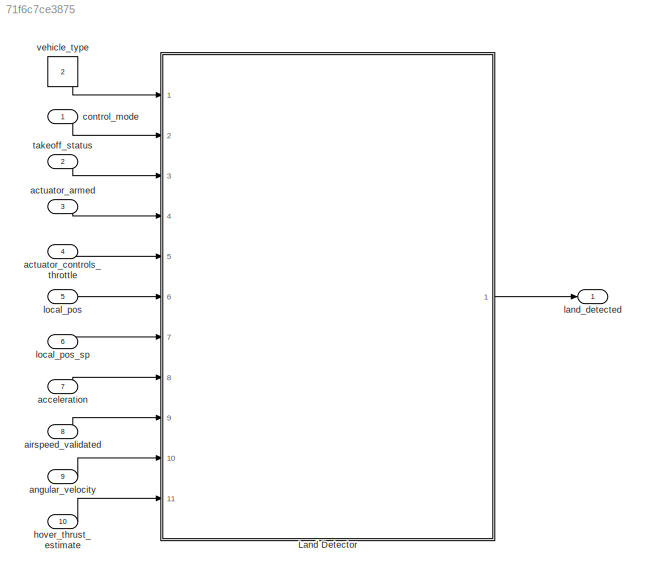
MODEL slx_71f6c7ce3875
KIND model
CONFIG AbsTol = auto
CONFIG EnableMultiTasking = off
CONFIG FixedStep = 0.04
CONFIG MaxStep = auto
CONFIG MinStep = auto
CONFIG RelTol = 1e-3
CONFIG SampleTimeConstraint = Unconstrained
CONFIG SolverName = FixedStepAuto
CONFIG StartTime = 0.0
CONFIG StopTime = 10.0
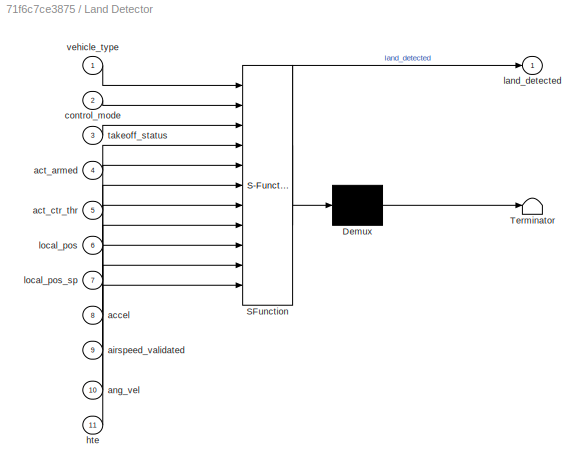
BLOCK [SubSystem] Land Detector
  ErrorFcn = Stateflow.Translate.translate
  PermitHierarchicalResolution = ExplicitOnly
  Ports = [11, 1]
  RequestExecContextInheritance = off
  SFBlockType = Chart
  TreatAsAtomicUnit = on
BLOCK [Demux] Land Detector/ Demux 
  Outputs = 1
  Ports = [1, 1]
BLOCK [S-Function] Land Detector/ SFunction 
  EnableBusSupport = on
  FunctionName = sf_sfun
  Parameters = LNDFW_AIRSPD_MAX,LNDFW_VEL_XY_MAX,LNDFW_VEL_Z_MAX,LNDFW_XYACC_MAX,LNDMC_ALT_GND,LNDMC_ROT_MAX,LNDMC_XY_VEL_MAX,LNDMC_Z_VEL_MAX,MPC_LAND_SPEED,MPC_MANTHR_MIN,MPC_THR_HOVER,MPC_THR_MIN
  PortCounts = [11 2]
  Ports = [11, 2]
  SFcnIsStateOwnerBlock = off
  SFunctionDeploymentMode = off
  Tag = Stateflow S-Function 3
BLOCK [Terminator] Land Detector/ Terminator 
BLOCK [Inport] Land Detector/accel
  Port = 8
BLOCK [Inport] Land Detector/act_armed
  Port = 4
BLOCK [Inport] Land Detector/act_ctr_thr
  Port = 5
BLOCK [Inport] Land Detector/airspeed_validated
  Port = 9
BLOCK [Inport] Land Detector/ang_vel
  Port = 10
BLOCK [Inport] Land Detector/control_mode
  Port = 2
BLOCK [Inport] Land Detector/hte
  Port = 11
BLOCK [Outport] Land Detector/land_detected
BLOCK [Inport] Land Detector/local_pos
  Port = 6
BLOCK [Inport] Land Detector/local_pos_sp
  Port = 7
BLOCK [Inport] Land Detector/takeoff_status
  Port = 3
BLOCK [Inport] Land Detector/vehicle_type
BLOCK [Inport] acceleration
  OutDataTypeStr = Bus: px4_vehicle_acceleration
  Port = 7
BLOCK [Inport] actuator_armed
  OutDataTypeStr = Bus: px4_actuator_armed
  Port = 3
BLOCK [Inport] actuator_controls_throttle
  OutDataTypeStr = Bus: px4_actuator_controls
  Port = 4
BLOCK [Inport] airspeed_validated
  OutDataTypeStr = Bus: px4_airspeed_validated
  Port = 8
BLOCK [Inport] angular_velocity
  OutDataTypeStr = Bus: px4_vehicle_angular_velocity
  Port = 9
BLOCK [Inport] control_mode
  OutDataTypeStr = Bus: px4_vehicle_control_mode
BLOCK [Inport] hover_thrust_estimate
  OutDataTypeStr = Bus: px4_hover_thrust_estimate
  Port = 10
BLOCK [Outport] land_detected
BLOCK [Inport] local_pos
  OutDataTypeStr = Bus: px4_vehicle_local_position
  Port = 5
BLOCK [Inport] local_pos_sp
  OutDataTypeStr = Bus: px4_vehicle_local_position_setpoint
  Port = 6
BLOCK [Inport] takeoff_status
  OutDataTypeStr = Bus: px4_takeoff_status
  Port = 2
BLOCK [Constant] vehicle_type
  OutDataTypeStr = uint8
  Value = 2
LINE Land Detector:1 -> land_detected:1
LINE acceleration:1 -> Land Detector:8
LINE actuator_armed:1 -> Land Detector:4
LINE actuator_controls_throttle:1 -> Land Detector:5
LINE airspeed_validated:1 -> Land Detector:9
LINE angular_velocity:1 -> Land Detector:10
LINE control_mode:1 -> Land Detector:2
LINE hover_thrust_estimate:1 -> Land Detector:11
LINE local_pos:1 -> Land Detector:6
LINE local_pos_sp:1 -> Land Detector:7
LINE takeoff_status:1 -> Land Detector:3
LINE vehicle_type:1 -> Land Detector:1
CHART Land Detector states=31 transitions=27
  STATE_LABEL 'Land_Logical'
  STATE_LABEL 'state = get_freefall_state(accel_xyz)'
  STATE_LABEL 'SCRIPT:\nfunction state = get_freefall_state(accel_xyz)\n\nif(norm(accel_xyz) < 2.0)\n    state = true;\nelse\n    state = false;\nend\n\nend\n\n\n'
  STATE_LABEL 'mc'
  STATE_LABEL 'freefall'
  STATE_LABEL 'freefall_true\nen,du:\nfreefall_state_ = true;'
  STATE_LABEL 'freefall_false\nen,du:\nfreefall_state_ = false;\n'
  STATE_LABEL '[duration(get_freefall_state(accel.xyz)) > 0.03]'
  STATE_LABEL '[duration(~get_freefall_state(accel.xyz)) > 0.03]'
  STATE_LABEL 'ground_contact\nen,du:\n[vertical_movement_state_, ...\n    horizontal_movement_state_, ...\n    ground_contact_state_, ...\n    in_descend_state_, ...\n    close_to_ground_or_skipped_check_state_, ...\n    alt_max_] = ...\n    get_ground_contact_state;\n'
  STATE_LABEL '[ver_move, horiz_move, ...\n    gnd_contact, in_descend, ...\n    close_to_ground_or_skipped_check, ...\n    gnd_effect_altitude] = get_ground_contact_state'
  STATE_LABEL 'SCRIPT:\nfunction [ver_move, horiz_move, ...\n    gnd_contact, in_descend, ...\n    close_to_ground_or_skipped_check, ...\n    gnd_effect_altitude] = get_ground_contact_state\n\ntime_now_us = uint64(getSimulationTime);\n\n% 默认保持上一拍值\nground_contact = ground_contact_state_;\nclose_to_ground_or_skipped_check = close_to_ground_or_skipped_check_state_;\n\n% 判断local_pos数据与当前时间间隔是否大于1s，如果大于1s，那么local_pos数据不可用\nif ((...<+3608ch>'
  STATE_LABEL 'maybe_land\nen,du:\nlow_throttle_state_ = is_low_throttle(maybe_landed_state_);'
  STATE_LABEL 'state = is_low_throttle(last_state)'
  STATE_LABEL 'SCRIPT:\nfunction state = is_low_throttle(last_state)\n\n% 先保持上一拍的值\nstate = last_state;\n\n% minimal throttle: initially 10% of throttle range between min and hover\n% MPC_THR_MIN 多旋翼自动模式下得最小油门，默认0.12\n% MPC_THR_HOVER 多旋翼悬停油门，默认0.5\nsys_min_throttle = MPC_THR_MIN + (MPC_THR_HOVER - MPC_THR_MIN) * 0.1;\n\n% Determine the system min throttle based on flight mode\n% MPC_MANTHR_MIN 多旋翼垂直方向最小油门，默认0.01\nif (~contro...<+413ch>'
  STATE_LABEL 'state = is_rotate'
  STATE_LABEL 'SCRIPT:\nfunction state = is_rotate\n\nstate = maybe_landed_state_;\ntime_now_us = uint64(getSimulationTime);\nlandThresholdFactor = 1.0;\n\n% Widen acceptance thresholds for landed state right after landed\nif ((time_now_us - landed_time_) < 2)\n    landThresholdFactor = 2.5;\nend\n\n% Next look if all rotation angles are not moving.\nangular_velocity = [ang_vel.xyz(1), ang_vel.xyz(2)];\nmax_rotation_scaled = ...<+524ch>'
  STATE_LABEL 'maybe_land_true\nen,du:\nmaybe_landed_state_ = true;'
  STATE_LABEL 'maybe_land_false\nen,du:\nmaybe_landed_state_ = false;\n'
  STATE_LABEL '[act_armed.armed || ...\n~is_rotate]'
  STATE_LABEL '[~act_armed.armed || ...\nfreefall_state_ || ...\n(min_thrust_start > 0 && duration(low_throttle_state_)) > 8.0 || ...\nfreefall_state_ ||...\nis_rotate]'
  STATE_LABEL 'landed\nen,du:\n% reset the landed_time\nif (~maybe_landed_state_)\n    landed_time_ = 0;\nelseif (landed_time_ == 0)\n    landed_time_ = uint64(getSimulationTime);\nend\n% update in_ground_effect_state_\nin_ground_effect_state_ = (in_descend_state_ && horizontal_movement_state_) || ...\n    (below_gnd_effect_hgt_state_ && takeoff_status.takeoff_state == uint8(PX4_TAKEOFF_STATUS.TAKEOFF_STATE_FLIGHT)) || .....<+85ch>'
  STATE_LABEL 'landed_true\nen,du:\nlanded_state_ = true;\n'
  STATE_LABEL 'landed_false\nen,du:\nlanded_state_ = false;'
  STATE_LABEL '[act_armed.armed]'
  STATE_LABEL '[~act_armed.armed]'
  STATE_LABEL 'vtol\n'
  STATE_LABEL 'freefall'
  STATE_LABEL 'freefall_true\nen,du:\n freefall_state_ = true;'
  STATE_LABEL 'freefall_false\nen,du:\n freefall_state_ = false;\n'
  STATE_LABEL '[duration(get_freefall_state(accel.xyz)) > 0.03]'
  STATE_LABEL '[duration(~get_freefall_state(accel.xyz)) > 0.03]'
  STATE_LABEL 'maybe_land\nen,du:\nlow_throttle_state_ = mc.maybe_land.is_low_throttle(maybe_landed_state_);\nmaybe_landed_state_ = mc.maybe_land.is_rotate;'
  STATE_LABEL 'maybe_land_true\nen,du:\nmaybe_landed_state_ = true;'
  STATE_LABEL 'maybe_land_false\nen,du:\nmaybe_landed_state_ = false;\n'
  STATE_LABEL '[act_armed.armed]'
  STATE_LABEL '[~act_armed.armed || ...\nfreefall_state_ || ...\n(min_thrust_start > 0 && duration(low_throttle_state_)) > 8.0 || ...\nfreefall_state_]'
  STATE_LABEL 'landed\nen,du:\n% reset the landed_time\nif (~maybe_landed_state_)\n    landed_time_ = 0;\nelseif (landed_time_ == 0)\n    landed_time_ = uint64(getSimulationTime);\nend\n% update in_ground_effect_state_\nin_ground_effect_state_ = (in_descend_state_ && horizontal_movement_state_) || ...\n    (below_gnd_effect_hgt_state_ && takeoff_status.takeoff_state == uint8(PX4_TAKEOFF_STATUS.TAKEOFF_STATE_FLIGHT)) || .....<+471ch>'
  STATE_LABEL 'landed_true\nen,du:\nlanded_state_ = true;\n'
  STATE_LABEL 'landed_false\nen,du:\nlanded_state_ = false;'
CHART  states=0 transitions=0
